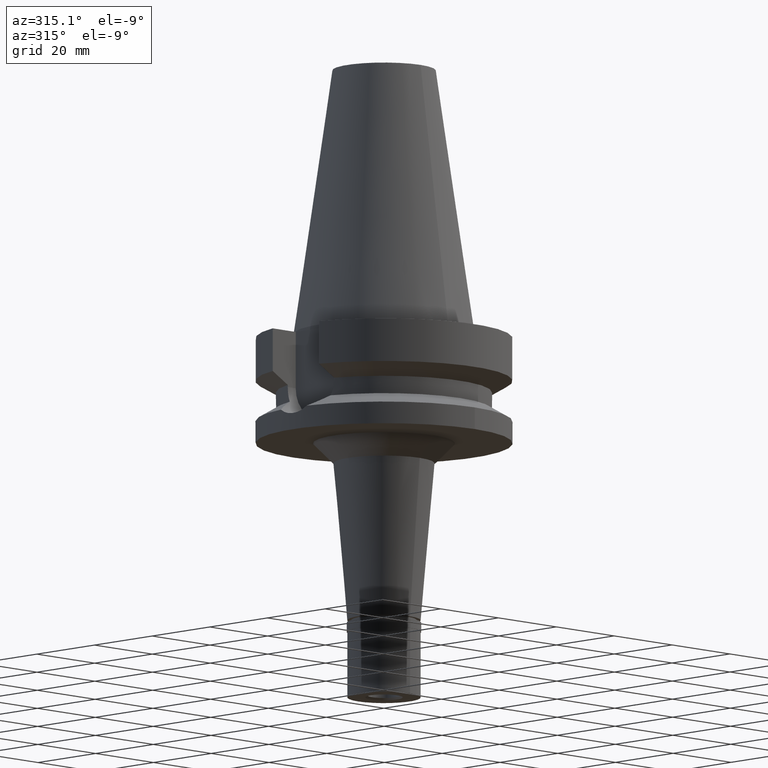
[diagram: clean part render]
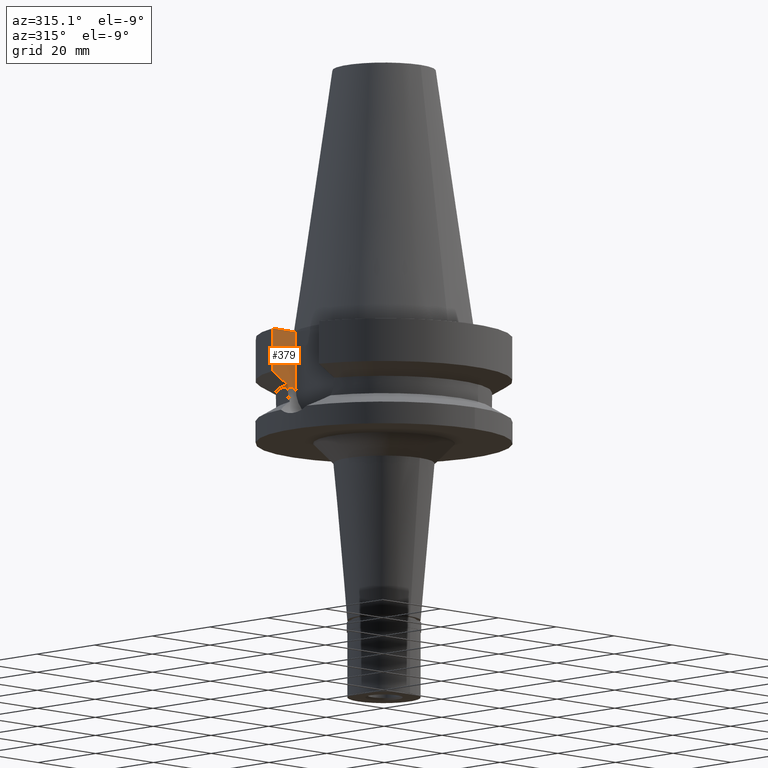
[diagram: same view with one face highlighted and labeled with its STEP entity id]
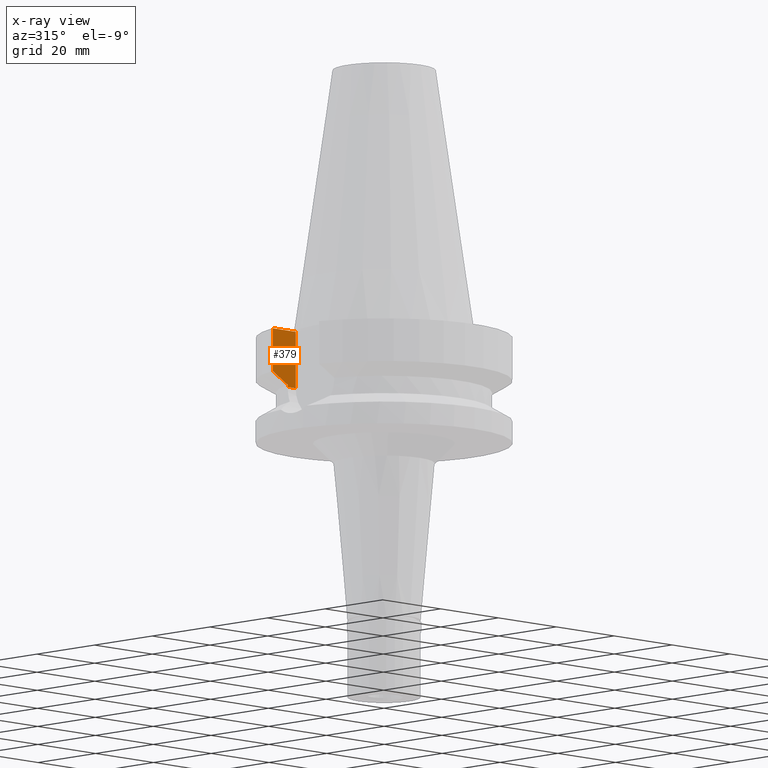
[diagram: x-ray of the same camera — body ghosted, the highlighted face saturated]
A machine part, auxiliary view. The second image highlights one B-rep face of the part: STEP entity #379.
The next image is the same camera in x-ray: the body ghosted, the highlighted face saturated — about 0% of this face is hidden behind the body in this view.
In plain terms, the highlighted planar face has unit normal (0, 1, 0).
Its self-contained STEP definition (entity closure, byte-faithful):
#108 = LINE ( 'NONE', #2619, #461 ) ;
#111 = CARTESIAN_POINT ( 'NONE',  ( -25.24772266958000344, 8.050000000000000711, -14.94999999999999929 ) ) ;
#139 = FACE_OUTER_BOUND ( 'NONE', #1147, .T. ) ;
#165 = VECTOR ( 'NONE', #2417, 1000.000000000000000 ) ;
#191 = PLANE ( 'NONE',  #1710 ) ;
#195 = CARTESIAN_POINT ( 'NONE',  ( -22.50000000000000000, 8.050000000000000711, -14.94999999999999929 ) ) ;
#205 = EDGE_CURVE ( 'NONE', #2622, #815, #2345, .T. ) ;
#253 = VERTEX_POINT ( 'NONE', #2882 ) ;
#286 = CARTESIAN_POINT ( 'NONE',  ( -25.24772216434000072, 8.050001584611999661, -14.45224489077999941 ) ) ;
#321 = VECTOR ( 'NONE', #2766, 999.9999999999998863 ) ;
#379 = ADVANCED_FACE ( 'NONE', ( #139 ), #191, .F. ) ;
#388 = VERTEX_POINT ( 'NONE', #2447 ) ;
#412 = CARTESIAN_POINT ( 'NONE',  ( -22.50000000000000000, 8.050000000000000711, -1.000000000000000000 ) ) ;
#440 = EDGE_CURVE ( 'NONE', #2023, #253, #1302, .T. ) ;
#461 = VECTOR ( 'NONE', #543, 1000.000000000000000 ) ;
#543 = DIRECTION ( 'NONE',  ( 0.0000000000000000000, 0.0000000000000000000, 1.000000000000000000 ) ) ;
#620 = CARTESIAN_POINT ( 'NONE',  ( -25.24772216434000072, 8.050001584611999661, -14.45224489077999941 ) ) ;
#678 = ORIENTED_EDGE ( 'NONE', *, *, #205, .F. ) ;
#779 = EDGE_CURVE ( 'NONE', #253, #815, #2781, .T. ) ;
#790 = CARTESIAN_POINT ( 'NONE',  ( -30.45402162707999949, 8.050004145194000316, -11.56546831452999946 ) ) ;
#798 = VECTOR ( 'NONE', #1076, 1000.000000000000000 ) ;
#815 = VERTEX_POINT ( 'NONE', #1489 ) ;
#871 = EDGE_CURVE ( 'NONE', #388, #1901, #1073, .T. ) ;
#907 = ORIENTED_EDGE ( 'NONE', *, *, #440, .T. ) ;
#1002 = CARTESIAN_POINT ( 'NONE',  ( -22.50000000000000000, 8.050000000000000711, -1.000000000000000000 ) ) ;
#1073 = LINE ( 'NONE', #111, #165 ) ;
#1076 = DIRECTION ( 'NONE',  ( -1.000000000000000000, -3.550916904668000126E-14, 0.0000000000000000000 ) ) ;
#1099 = DIRECTION ( 'NONE',  ( 1.000000000000000000, 0.0000000000000000000, 0.0000000000000000000 ) ) ;
#1127 = DIRECTION ( 'NONE',  ( -0.0000000000000000000, 1.000000000000000000, 0.0000000000000000000 ) ) ;
#1147 = EDGE_LOOP ( 'NONE', ( #2219, #2821, #907, #1188, #678, #2388 ) ) ;
#1188 = ORIENTED_EDGE ( 'NONE', *, *, #779, .T. ) ;
#1206 = CARTESIAN_POINT ( 'NONE',  ( -28.57295866802980910, 8.050008285351609061, -12.61547482854027891 ) ) ;
#1302 = LINE ( 'NONE', #1788, #798 ) ;
#1462 = EDGE_CURVE ( 'NONE', #2622, #388, #2026, .T. ) ;
#1489 = CARTESIAN_POINT ( 'NONE',  ( -30.45402162707999949, 8.050004145194000316, -11.56546831452999946 ) ) ;
#1645 = EDGE_CURVE ( 'NONE', #1901, #2023, #108, .T. ) ;
#1710 = AXIS2_PLACEMENT_3D ( 'NONE', #412, #1127, #1099 ) ;
#1788 = CARTESIAN_POINT ( 'NONE',  ( -22.50000000000000000, 8.050000000000000711, -1.000000000000000000 ) ) ;
#1844 = CARTESIAN_POINT ( 'NONE',  ( -30.45402272279000044, 8.050000000000000711, -1.000000000000000000 ) ) ;
#1901 = VERTEX_POINT ( 'NONE', #195 ) ;
#2023 = VERTEX_POINT ( 'NONE', #1002 ) ;
#2026 = LINE ( 'NONE', #2562, #2786 ) ;
#2219 = ORIENTED_EDGE ( 'NONE', *, *, #871, .T. ) ;
#2345 = B_SPLINE_CURVE_WITH_KNOTS ( 'NONE', 3,
 ( #286, #2868, #1206, #790 ),
 .UNSPECIFIED., .F., .F.,
 ( 4, 4 ),
 ( 0.0000000000000000000, 1.000000000000000000 ),
 .UNSPECIFIED. ) ;
#2388 = ORIENTED_EDGE ( 'NONE', *, *, #1462, .T. ) ;
#2417 = DIRECTION ( 'NONE',  ( 1.000000000000000000, 1.551559937893000172E-14, -3.620306521749999889E-14 ) ) ;
#2447 = CARTESIAN_POINT ( 'NONE',  ( -25.24772266958000344, 8.050000000000000711, -14.94999999999999929 ) ) ;
#2562 = CARTESIAN_POINT ( 'NONE',  ( -25.24772216434000072, 8.050001584611999661, -14.45224489077999941 ) ) ;
#2619 = CARTESIAN_POINT ( 'NONE',  ( -22.50000000000000000, 8.050000000000000711, -14.94999999999999929 ) ) ;
#2622 = VERTEX_POINT ( 'NONE', #620 ) ;
#2766 = DIRECTION ( 'NONE',  ( 1.037069594849017590E-07, 3.923341346312068686E-07, -0.9999999999999177325 ) ) ;
#2773 = DIRECTION ( 'NONE',  ( -1.015034446201017685E-06, -3.183518365722053778E-06, -0.9999999999944173545 ) ) ;
#2781 = LINE ( 'NONE', #1844, #321 ) ;
#2786 = VECTOR ( 'NONE', #2773, 1000.000000000000114 ) ;
#2821 = ORIENTED_EDGE ( 'NONE', *, *, #1645, .T. ) ;
#2868 = CARTESIAN_POINT ( 'NONE',  ( -26.83758143443306565, 8.050003172647581806, -13.57772737971592747 ) ) ;
#2882 = CARTESIAN_POINT ( 'NONE',  ( -30.45402272279000044, 8.050000000000000711, -1.000000000000000000 ) ) ;